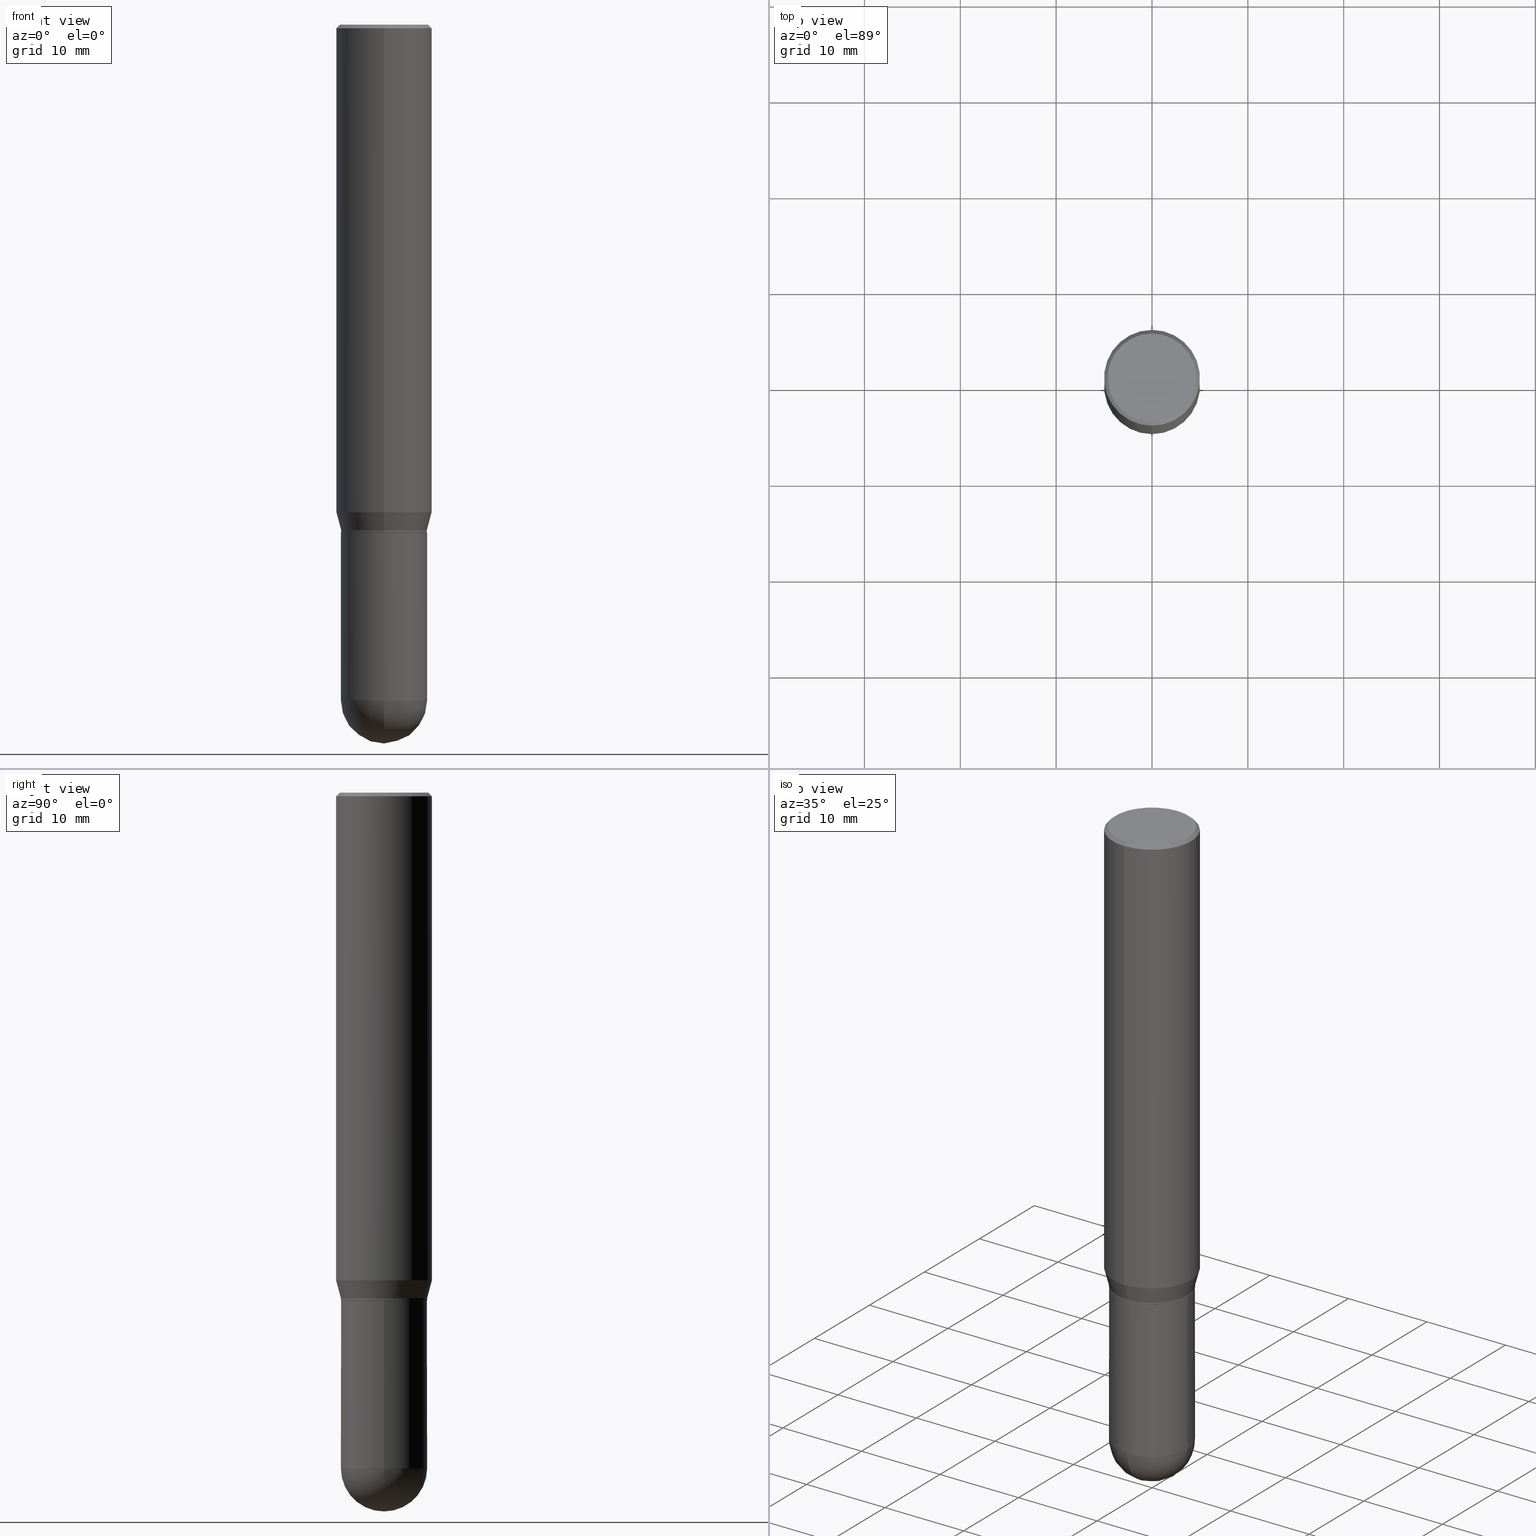
[diagram: canonical four-view strip — front | top / right | iso, engineering-drawing reading convention]
A machine part, canonical four-view strip (front | top / right | iso — engineering-drawing reading convention). The complete STEP part file that produces these views, byte-faithful:
ISO-10303-21;
HEADER;
FILE_DESCRIPTION (( 'STEP AP203' ),
    '1' );
FILE_NAME ('40154.STEP',
    '2024-03-08T12:57:14',
    ( '' ),
    ( '' ),
    'SwSTEP 2.0',
    'SolidWorks 2023',
    '' );
FILE_SCHEMA (( 'CONFIG_CONTROL_DESIGN' ));
ENDSEC;

DATA;
#1 = AXIS2_PLACEMENT_3D ( 'NONE', #118, #279, #435 ) ;
#2 = AXIS2_PLACEMENT_3D ( 'NONE', #31, #149, #281 ) ;
#3 = CC_DESIGN_APPROVAL ( #142, ( #197 ) ) ;
#4 = CARTESIAN_POINT ( 'NONE',  ( 1.255173742720268265E-15, 0.1766499999999928128, -2.086700000000000443 ) ) ;
#5 = CARTESIAN_POINT ( 'NONE',  ( -1.237031838352071315E-15, -0.1771500000000072461, -2.076699999999999768 ) ) ;
#6 = APPLICATION_PROTOCOL_DEFINITION ( 'international standard', 'config_control_design', 1994, #222 ) ;
#7 = CARTESIAN_POINT ( 'NONE',  ( 0.1771500000000000852, -8.522705948116114900E-15, -2.086699999999999999 ) ) ;
#8 = DIRECTION ( 'NONE',  ( -2.445684778589314030E-29, 3.491172054067977715E-15, 1.000000000000000000 ) ) ;
#9 = DIRECTION ( 'NONE',  ( -1.000000000000000000, 6.982962677686265922E-15, -4.876176775795935793E-29 ) ) ;
#10 = LOCAL_TIME ( 7, 57, 14.00000000000000000, #340 ) ;
#11 = DIRECTION ( 'NONE',  ( 2.445684778589314030E-29, -3.491172054067977715E-15, -1.000000000000000000 ) ) ;
#12 = ORIENTED_EDGE ( 'NONE', *, *, #117, .T. ) ;
#13 = LINE ( 'NONE', #297, #167 ) ;
#14 = AXIS2_PLACEMENT_3D ( 'NONE', #448, #75, #200 ) ;
#15 = EDGE_CURVE ( 'NONE', #425, #71, #382, .T. ) ;
#16 = CONICAL_SURFACE ( 'NONE', #137, 0.1766500000000000847, 0.7853981633974824739 ) ;
#17 = ORIENTED_EDGE ( 'NONE', *, *, #188, .F. ) ;
#18 = EDGE_CURVE ( 'NONE', #58, #313, #308, .T. ) ;
#19 = ORIENTED_EDGE ( 'NONE', *, *, #412, .T. ) ;
#20 = EDGE_CURVE ( 'NONE', #298, #193, #482, .T. ) ;
#21 = AXIS2_PLACEMENT_3D ( 'NONE', #99, #56, #259 ) ;
#22 = VERTEX_POINT ( 'NONE', #461 ) ;
#23 = EDGE_CURVE ( 'NONE', #223, #295, #52, .T. ) ;
#24 = DATE_AND_TIME ( #111, #375 ) ;
#25 = EDGE_LOOP ( 'NONE', ( #147, #465, #305, #148 ) ) ;
#26 = PLANE ( 'NONE',  #233 ) ;
#27 = DATE_AND_TIME ( #114, #46 ) ;
#28 = AXIS2_PLACEMENT_3D ( 'NONE', #410, #408, #186 ) ;
#29 = FACE_OUTER_BOUND ( 'NONE', #63, .T. ) ;
#30 = ORIENTED_EDGE ( 'NONE', *, *, #23, .T. ) ;
#31 = CARTESIAN_POINT ( 'NONE',  ( 6.787765491887772680E-29, -9.691130178159974964E-15, -2.775649999999999729 ) ) ;
#32 = EDGE_CURVE ( 'NONE', #58, #215, #13, .T. ) ;
#33 = CARTESIAN_POINT ( 'NONE',  ( 5.078953579696428568E-29, -7.250117004682970319E-15, -2.076700000000000212 ) ) ;
#34 = SHAPE_DEFINITION_REPRESENTATION ( #216, #199 ) ;
#35 = PLANE ( 'NONE',  #483 ) ;
#36 = DIRECTION ( 'NONE',  ( 1.839019923739597554E-15, 0.2588190451025245697, 0.9659258262890670910 ) ) ;
#37 = DIRECTION ( 'NONE',  ( 6.982962677686264344E-15, 1.000000000000000000, 0.000000000000000000 ) ) ;
#38 = DIRECTION ( 'NONE',  ( -6.982962677686265133E-15, -1.000000000000000000, 3.092949893760839854E-15 ) ) ;
#39 = EDGE_CURVE ( 'NONE', #460, #120, #474, .T. ) ;
#40 = DIRECTION ( 'NONE',  ( -6.982962677686265922E-15, -1.000000000000000000, 3.084220145260246224E-15 ) ) ;
#41 = ORIENTED_EDGE ( 'NONE', *, *, #333, .T. ) ;
#42 = DIMENSIONAL_EXPONENTS ( 1.000000000000000000, 0.000000000000000000, 0.000000000000000000, 0.000000000000000000, 0.000000000000000000, 0.000000000000000000, 0.000000000000000000 ) ;
#43 = AXIS2_PLACEMENT_3D ( 'NONE', #319, #207, #287 ) ;
#44 = CC_DESIGN_PERSON_AND_ORGANIZATION_ASSIGNMENT ( #262, #343, ( #197 ) ) ;
#45 = CARTESIAN_POINT ( 'NONE',  ( 4.899143408592464903E-29, -6.993441144453169598E-15, -2.003178599090893464 ) ) ;
#46 = LOCAL_TIME ( 7, 57, 14.00000000000000000, #381 ) ;
#47 = DIRECTION ( 'NONE',  ( -2.445684778589314030E-29, 3.491172054067977715E-15, 1.000000000000000000 ) ) ;
#48 =( NAMED_UNIT ( * ) PLANE_ANGLE_UNIT ( ) SI_UNIT ( $, .RADIAN. ) );
#49 = ORIENTED_EDGE ( 'NONE', *, *, #302, .F. ) ;
#50 = CARTESIAN_POINT ( 'NONE',  ( 1.237031838352173473E-15, 0.1771499999999928132, -2.086700000000000443 ) ) ;
#51 = ORIENTED_EDGE ( 'NONE', *, *, #205, .F. ) ;
#52 = CIRCLE ( 'NONE', #28, 0.1766500000000000847 ) ;
#53 = AXIS2_PLACEMENT_3D ( 'NONE', #443, #488, #133 ) ;
#54 = DIRECTION ( 'NONE',  ( -2.445684778589314030E-29, 3.491172054067977715E-15, 1.000000000000000000 ) ) ;
#55 = DIRECTION ( 'NONE',  ( -2.445468806185136597E-29, 3.491481338843145583E-15, 1.000000000000000000 ) ) ;
#56 = DIRECTION ( 'NONE',  ( -2.445684778589314030E-29, 3.491172054067977715E-15, 1.000000000000000000 ) ) ;
#57 = ADVANCED_FACE ( 'NONE', ( #138 ), #452, .T. ) ;
#58 = VERTEX_POINT ( 'NONE', #493 ) ;
#59 = PERSON_AND_ORGANIZATION ( #174, #107 ) ;
#60 = VECTOR ( 'NONE', #271, 39.37007874015748143 ) ;
#61 = AXIS2_PLACEMENT_3D ( 'NONE', #73, #113, #242 ) ;
#62 = ORIENTED_EDGE ( 'NONE', *, *, #231, .T. ) ;
#63 = EDGE_LOOP ( 'NONE', ( #103, #19, #377, #256 ) ) ;
#64 = DIRECTION ( 'NONE',  ( -2.445684778589314030E-29, 3.491172054067977715E-15, 1.000000000000000000 ) ) ;
#65 = DIRECTION ( 'NONE',  ( -6.982962677686265922E-15, -1.000000000000000000, 3.491172054067977715E-15 ) ) ;
#66 = ORIENTED_EDGE ( 'NONE', *, *, #134, .F. ) ;
#67 = CARTESIAN_POINT ( 'NONE',  ( -1.258726456398949454E-15, -0.1771500000000097441, -2.775649999999999284 ) ) ;
#68 = ADVANCED_FACE ( 'NONE', ( #351 ), #501, .T. ) ;
#69 = VECTOR ( 'NONE', #36, 39.37007874015748854 ) ;
#70 = AXIS2_PLACEMENT_3D ( 'NONE', #179, #337, #416 ) ;
#71 = VERTEX_POINT ( 'NONE', #473 ) ;
#72 = FACE_OUTER_BOUND ( 'NONE', #385, .T. ) ;
#73 = CARTESIAN_POINT ( 'NONE',  ( 6.813022828238686978E-29, -9.654960234947156736E-15, -2.775649999999999729 ) ) ;
#74 = PERSON_AND_ORGANIZATION_ROLE ( 'classification_officer' ) ;
#75 = DIRECTION ( 'NONE',  ( -2.445684778589314030E-29, 3.491172054067977715E-15, 1.000000000000000000 ) ) ;
#76 = DIRECTION ( 'NONE',  ( 1.000000000000000000, -6.982962677686270655E-15, 0.000000000000000000 ) ) ;
#77 = AXIS2_PLACEMENT_3D ( 'NONE', #166, #11, #444 ) ;
#78 = PRODUCT_DEFINITION_FORMATION_WITH_SPECIFIED_SOURCE ( 'ANY', '', #247, .NOT_KNOWN. ) ;
#79 = EDGE_CURVE ( 'NONE', #22, #498, #89, .T. ) ;
#80 = DIRECTION ( 'NONE',  ( -6.982962677686265922E-15, -1.000000000000000000, 4.163344669033675634E-15 ) ) ;
#81 = FACE_OUTER_BOUND ( 'NONE', #341, .T. ) ;
#82 =( CONVERSION_BASED_UNIT ( 'INCH', #323 ) LENGTH_UNIT ( ) NAMED_UNIT ( #42 ) );
#83 = CARTESIAN_POINT ( 'NONE',  ( 6.813022828238686978E-29, -9.654960234947156736E-15, -2.775649999999999729 ) ) ;
#84 = UNCERTAINTY_MEASURE_WITH_UNIT (LENGTH_MEASURE( 1.000000000000000082E-05 ), #82, 'distance_accuracy_value', 'NONE');
#85 = CC_DESIGN_PERSON_AND_ORGANIZATION_ASSIGNMENT ( #497, #418, ( #247 ) ) ;
#86 = DIRECTION ( 'NONE',  ( -6.982962677686265133E-15, -1.000000000000000000, 3.092949893760839854E-15 ) ) ;
#87 = DIRECTION ( 'NONE',  ( -1.807323732225327773E-15, -0.2588190451025178529, 0.9659258262890690894 ) ) ;
#88 = ORIENTED_EDGE ( 'NONE', *, *, #412, .F. ) ;
#89 = CIRCLE ( 'NONE', #1, 0.1968500000000000250 ) ;
#90 = AXIS2_PLACEMENT_3D ( 'NONE', #282, #47, #130 ) ;
#91 = DIRECTION ( 'NONE',  ( -2.445684778589314030E-29, 3.491172054067977715E-15, 1.000000000000000000 ) ) ;
#92 = VERTEX_POINT ( 'NONE', #239 ) ;
#93 = ORIENTED_EDGE ( 'NONE', *, *, #301, .T. ) ;
#94 = CARTESIAN_POINT ( 'NONE',  ( 6.787765491887772680E-29, -9.691130178159974964E-15, -2.775649999999999729 ) ) ;
#95 = CONICAL_SURFACE ( 'NONE', #77, 0.1968500000000000250, 0.7853981633974485010 ) ;
#96 = EDGE_CURVE ( 'NONE', #489, #498, #391, .T. ) ;
#97 = AXIS2_PLACEMENT_3D ( 'NONE', #449, #91, #131 ) ;
#98 = PERSON_AND_ORGANIZATION_ROLE ( 'creator' ) ;
#99 = CARTESIAN_POINT ( 'NONE',  ( 0.000000000000000000, 0.000000000000000000, 0.000000000000000000 ) ) ;
#100 = ORIENTED_EDGE ( 'NONE', *, *, #260, .F. ) ;
#101 = EDGE_LOOP ( 'NONE', ( #115, #93, #267, #190, #196 ) ) ;
#102 = ORIENTED_EDGE ( 'NONE', *, *, #188, .T. ) ;
#103 = ORIENTED_EDGE ( 'NONE', *, *, #464, .T. ) ;
#104 = PRODUCT_RELATED_PRODUCT_CATEGORY ( 'detail', '', ( #247 ) ) ;
#105 = ORIENTED_EDGE ( 'NONE', *, *, #388, .T. ) ;
#106 = CIRCLE ( 'NONE', #43, 0.1818500000000000116 ) ;
#107 = ORGANIZATION ( 'UNSPECIFIED', 'UNSPECIFIED', '' ) ;
#108 = DIRECTION ( 'NONE',  ( -6.982962677686265922E-15, -1.000000000000000000, 3.084220145260246224E-15 ) ) ;
#109 = EDGE_CURVE ( 'NONE', #321, #22, #145, .T. ) ;
#110 = FACE_OUTER_BOUND ( 'NONE', #370, .T. ) ;
#111 = CALENDAR_DATE ( 2024, 8, 3 ) ;
#112 = ORIENTED_EDGE ( 'NONE', *, *, #464, .F. ) ;
#113 = DIRECTION ( 'NONE',  ( -1.000000000000000000, 6.982962677686265133E-15, -4.883557194083112340E-29 ) ) ;
#114 = CALENDAR_DATE ( 2024, 8, 3 ) ;
#115 = ORIENTED_EDGE ( 'NONE', *, *, #407, .F. ) ;
#116 = FACE_OUTER_BOUND ( 'NONE', #421, .T. ) ;
#117 = EDGE_CURVE ( 'NONE', #223, #58, #427, .T. ) ;
#118 = CARTESIAN_POINT ( 'NONE',  ( 3.668527167884071097E-31, -5.236758081102108568E-17, -0.01500000000000040710 ) ) ;
#119 = CIRCLE ( 'NONE', #374, 0.1771500000000000574 ) ;
#120 = VERTEX_POINT ( 'NONE', #7 ) ;
#121 = DIRECTION ( 'NONE',  ( 6.982962677686265922E-15, 1.000000000000000000, -3.491172054067977715E-15 ) ) ;
#122 = FACE_OUTER_BOUND ( 'NONE', #415, .T. ) ;
#123 = ORIENTED_EDGE ( 'NONE', *, *, #388, .F. ) ;
#124 = APPROVAL ( #379, 'UNSPECIFIED' ) ;
#125 = CARTESIAN_POINT ( 'NONE',  ( 1.256950099559668320E-15, 0.1766499999999928128, -2.086700000000000443 ) ) ;
#126 = CARTESIAN_POINT ( 'NONE',  ( 0.000000000000000000, 0.000000000000000000, 0.000000000000000000 ) ) ;
#127 = FACE_OUTER_BOUND ( 'NONE', #25, .T. ) ;
#128 = LINE ( 'NONE', #254, #317 ) ;
#129 = FACE_OUTER_BOUND ( 'NONE', #211, .T. ) ;
#130 = DIRECTION ( 'NONE',  ( -6.982962677686265133E-15, -1.000000000000000000, 3.491137977679279424E-15 ) ) ;
#131 = DIRECTION ( 'NONE',  ( -6.982962677686265922E-15, -1.000000000000000000, 4.163344669033675634E-15 ) ) ;
#132 = DIRECTION ( 'NONE',  ( -2.445684778589314030E-29, 3.491172054067977715E-15, 1.000000000000000000 ) ) ;
#133 = DIRECTION ( 'NONE',  ( -6.982962677686265922E-15, -1.000000000000000000, 3.491172054067978110E-15 ) ) ;
#134 = EDGE_CURVE ( 'NONE', #489, #92, #106, .T. ) ;
#135 = EDGE_LOOP ( 'NONE', ( #487, #453 ) ) ;
#136 = AXIS2_PLACEMENT_3D ( 'NONE', #398, #478, #38 ) ;
#137 = AXIS2_PLACEMENT_3D ( 'NONE', #285, #367, #86 ) ;
#138 = FACE_OUTER_BOUND ( 'NONE', #144, .T. ) ;
#139 = EDGE_LOOP ( 'NONE', ( #348, #366, #420, #153 ) ) ;
#140 = EDGE_CURVE ( 'NONE', #295, #223, #255, .T. ) ;
#141 = CALENDAR_DATE ( 2024, 8, 3 ) ;
#142 = APPROVAL ( #143, 'UNSPECIFIED' ) ;
#143 = APPROVAL_STATUS ( 'not_yet_approved' ) ;
#144 = EDGE_LOOP ( 'NONE', ( #88, #423, #175, #51 ) ) ;
#145 = LINE ( 'NONE', #146, #60 ) ;
#146 = CARTESIAN_POINT ( 'NONE',  ( -1.374596203102541214E-15, -0.1968499999999999694, 6.872372188432813315E-16 ) ) ;
#147 = ORIENTED_EDGE ( 'NONE', *, *, #173, .F. ) ;
#148 = ORIENTED_EDGE ( 'NONE', *, *, #210, .F. ) ;
#149 = DIRECTION ( 'NONE',  ( -2.445468806185136597E-29, 3.491481338843145583E-15, 1.000000000000000000 ) ) ;
#150 = CIRCLE ( 'NONE', #451, 0.1771500000000000019 ) ;
#151 = COORDINATED_UNIVERSAL_TIME_OFFSET ( 5, 0, .BEHIND. ) ;
#152 = EDGE_CURVE ( 'NONE', #215, #321, #446, .T. ) ;
#153 = ORIENTED_EDGE ( 'NONE', *, *, #96, .F. ) ;
#154 = CARTESIAN_POINT ( 'NONE',  ( 0.000000000000000000, 0.000000000000000000, 0.000000000000000000 ) ) ;
#155 = ADVANCED_FACE ( 'NONE', ( #208 ), #290, .T. ) ;
#156 = CARTESIAN_POINT ( 'NONE',  ( 1.258726456399067783E-15, 0.1771499999999926744, -2.086200000000000720 ) ) ;
#157 = CARTESIAN_POINT ( 'NONE',  ( 1.398703375343805514E-15, 0.1968499999999929750, -2.003178599090894352 ) ) ;
#158 = DATE_AND_TIME ( #238, #169 ) ;
#159 = CARTESIAN_POINT ( 'NONE',  ( -1.237031838352071315E-15, -0.1771500000000072461, -2.076699999999999768 ) ) ;
#160 = CYLINDRICAL_SURFACE ( 'NONE', #365, 0.1771500000000000574 ) ;
#161 = COORDINATED_UNIVERSAL_TIME_OFFSET ( 5, 0, .BEHIND. ) ;
#162 = DIRECTION ( 'NONE',  ( -6.982962677686265922E-15, -1.000000000000000000, 3.491172054067977715E-15 ) ) ;
#163 = CARTESIAN_POINT ( 'NONE',  ( -0.1771500000000000852, -7.229675687562965256E-15, -2.086699999999999999 ) ) ;
#164 = CARTESIAN_POINT ( 'NONE',  ( 5.102187585093028029E-29, -7.283283139196615099E-15, -2.086199999999999832 ) ) ;
#165 = CARTESIAN_POINT ( 'NONE',  ( 5.102959757866523939E-29, -7.285674109763990928E-15, -2.086699999999999999 ) ) ;
#166 = CARTESIAN_POINT ( 'NONE',  ( 3.668527167884071097E-31, -5.236758081102108568E-17, -0.01500000000000040710 ) ) ;
#167 = VECTOR ( 'NONE', #54, 39.37007874015748143 ) ;
#168 = CIRCLE ( 'NONE', #397, 0.1771500000000000574 ) ;
#169 = LOCAL_TIME ( 7, 57, 14.00000000000000000, #161 ) ;
#170 = CARTESIAN_POINT ( 'NONE',  ( 1.398703375343756802E-15, 0.1968499999999999694, -6.872372188432813315E-16 ) ) ;
#171 = CARTESIAN_POINT ( 'NONE',  ( 7.253812262660790316E-29, -1.026262884509977305E-14, -2.952799999999999869 ) ) ;
#172 = PLANE ( 'NONE',  #280 ) ;
#173 = EDGE_CURVE ( 'NONE', #313, #309, #128, .T. ) ;
#174 = PERSON ( 'UNSPECIFIED', 'UNSPECIFIED', 'UNSPECIFIED', ('UNSPECIFIED'), ('UNSPECIFIED'), ('UNSPECIFIED') ) ;
#175 = ORIENTED_EDGE ( 'NONE', *, *, #109, .T. ) ;
#176 = AXIS2_PLACEMENT_3D ( 'NONE', #312, #278, #434 ) ;
#177 = ADVANCED_FACE ( 'NONE', ( #206 ), #95, .T. ) ;
#178 = EDGE_LOOP ( 'NONE', ( #123, #411, #12, #185 ) ) ;
#179 = CARTESIAN_POINT ( 'NONE',  ( 0.000000000000000000, 0.000000000000000000, 0.000000000000000000 ) ) ;
#180 = ORIENTED_EDGE ( 'NONE', *, *, #15, .T. ) ;
#181 = ADVANCED_FACE ( 'NONE', ( #81 ), #299, .T. ) ;
#182 = EDGE_LOOP ( 'NONE', ( #417, #368, #392, #236 ) ) ;
#183 = ADVANCED_FACE ( 'NONE', ( #122 ), #284, .T. ) ;
#184 = VECTOR ( 'NONE', #291, 39.37007874015748143 ) ;
#185 = ORIENTED_EDGE ( 'NONE', *, *, #220, .F. ) ;
#186 = DIRECTION ( 'NONE',  ( -6.982962677686265133E-15, -1.000000000000000000, 3.092949893760839854E-15 ) ) ;
#187 = EDGE_LOOP ( 'NONE', ( #49, #62, #17, #240 ) ) ;
#188 = EDGE_CURVE ( 'NONE', #193, #425, #203, .T. ) ;
#189 = ORIENTED_EDGE ( 'NONE', *, *, #438, .F. ) ;
#190 = ORIENTED_EDGE ( 'NONE', *, *, #345, .T. ) ;
#191 = DIRECTION ( 'NONE',  ( -4.851104656540965064E-15, -0.7071067811865501263, -0.7071067811865449082 ) ) ;
#192 = AXIS2_PLACEMENT_3D ( 'NONE', #440, #405, #76 ) ;
#193 = VERTEX_POINT ( 'NONE', #213 ) ;
#194 = DIRECTION ( 'NONE',  ( -2.445684778589314030E-29, 3.491172054067977715E-15, 1.000000000000000000 ) ) ;
#195 = DIRECTION ( 'NONE',  ( -2.445684778589314030E-29, 3.491172054067977715E-15, 1.000000000000000000 ) ) ;
#196 = ORIENTED_EDGE ( 'NONE', *, *, #39, .F. ) ;
#197 = PRODUCT_DEFINITION ( 'UNKNOWN', '', #78, #331 ) ;
#198 = FACE_OUTER_BOUND ( 'NONE', #187, .T. ) ;
#199 = ADVANCED_BREP_SHAPE_REPRESENTATION ( '40154', ( #273, #436, #70 ), #335 ) ;
#200 = DIRECTION ( 'NONE',  ( -6.982962677686265133E-15, -1.000000000000000000, 3.092949893760839854E-15 ) ) ;
#201 = CLOSED_SHELL ( 'NONE', ( #362, #183, #506, #378, #155 ) ) ;
#202 = APPROVAL ( #243, 'UNSPECIFIED' ) ;
#203 = CIRCLE ( 'NONE', #192, 0.1771500000000000574 ) ;
#204 = CARTESIAN_POINT ( 'NONE',  ( 0.000000000000000000, 0.000000000000000000, 0.000000000000000000 ) ) ;
#205 = EDGE_CURVE ( 'NONE', #498, #22, #491, .T. ) ;
#206 = FACE_OUTER_BOUND ( 'NONE', #139, .T. ) ;
#207 = DIRECTION ( 'NONE',  ( -2.445684778589314030E-29, 3.491172054067977715E-15, 1.000000000000000000 ) ) ;
#208 = FACE_OUTER_BOUND ( 'NONE', #101, .T. ) ;
#209 = AXIS2_PLACEMENT_3D ( 'NONE', #486, #132, #396 ) ;
#210 = EDGE_CURVE ( 'NONE', #309, #215, #150, .T. ) ;
#211 = EDGE_LOOP ( 'NONE', ( #500, #468 ) ) ;
#212 = LINE ( 'NONE', #170, #475 ) ;
#213 = CARTESIAN_POINT ( 'NONE',  ( 0.1771500000000000574, -9.725433982314104551E-15, -2.775649999999999729 ) ) ;
#214 =( NAMED_UNIT ( * ) SI_UNIT ( $, .STERADIAN. ) SOLID_ANGLE_UNIT ( ) );
#215 = VERTEX_POINT ( 'NONE', #159 ) ;
#216 = PRODUCT_DEFINITION_SHAPE ( 'NONE', 'NONE',  #197 ) ;
#217 = VECTOR ( 'NONE', #87, 39.37007874015748143 ) ;
#218 = LOCAL_TIME ( 7, 57, 14.00000000000000000, #151 ) ;
#219 = DIRECTION ( 'NONE',  ( 1.000000000000000000, -6.982962677686270655E-15, 0.000000000000000000 ) ) ;
#220 = EDGE_CURVE ( 'NONE', #313, #58, #413, .T. ) ;
#221 = MECHANICAL_CONTEXT ( 'NONE', #222, 'mechanical' ) ;
#222 = APPLICATION_CONTEXT ( 'configuration controlled 3d designs of mechanical parts and assemblies' ) ;
#223 = VERTEX_POINT ( 'NONE', #401 ) ;
#224 = PERSON_AND_ORGANIZATION ( #174, #107 ) ;
#225 = AXIS2_PLACEMENT_3D ( 'NONE', #204, #194, #65 ) ;
#226 = ADVANCED_FACE ( 'NONE', ( #394 ), #35, .F. ) ;
#227 = ORIENTED_EDGE ( 'NONE', *, *, #302, .T. ) ;
#228 = APPROVAL_ROLE ( '' ) ;
#229 = APPROVAL_DATE_TIME ( #24, #142 ) ;
#230 = CYLINDRICAL_SURFACE ( 'NONE', #225, 0.1968499999999999694 ) ;
#231 = EDGE_CURVE ( 'NONE', #253, #425, #119, .T. ) ;
#232 = CARTESIAN_POINT ( 'NONE',  ( 1.258726456399067980E-15, 0.1771499999999927855, -2.076700000000000657 ) ) ;
#233 = AXIS2_PLACEMENT_3D ( 'NONE', #354, #237, #121 ) ;
#234 = PERSON_AND_ORGANIZATION ( #174, #107 ) ;
#235 = CC_DESIGN_APPROVAL ( #124, ( #78 ) ) ;
#236 = ORIENTED_EDGE ( 'NONE', *, *, #454, .F. ) ;
#237 = DIRECTION ( 'NONE',  ( 2.445684778589313749E-29, -3.491172054067977715E-15, -1.000000000000000000 ) ) ;
#238 = CALENDAR_DATE ( 2024, 8, 3 ) ;
#239 = CARTESIAN_POINT ( 'NONE',  ( -1.299035295878039226E-15, -0.1818500000000000116, 2.277643965498135137E-16 ) ) ;
#240 = ORIENTED_EDGE ( 'NONE', *, *, #20, .F. ) ;
#241 = CC_DESIGN_DATE_AND_TIME_ASSIGNMENT ( #27, #426, ( #424 ) ) ;
#242 = DIRECTION ( 'NONE',  ( 6.982962677686265133E-15, 1.000000000000000000, -3.084220145260245435E-15 ) ) ;
#243 = APPROVAL_STATUS ( 'not_yet_approved' ) ;
#244 = DIRECTION ( 'NONE',  ( -6.982962677686265922E-15, -1.000000000000000000, 3.084220145260246224E-15 ) ) ;
#245 = ADVANCED_FACE ( 'NONE', ( #364 ), #261, .T. ) ;
#246 = CARTESIAN_POINT ( 'NONE',  ( -0.1771500000000000574, 1.258726456399017887E-15, -8.713893512386568128E-30 ) ) ;
#247 = PRODUCT ( '40154', '40154', '', ( #221 ) ) ;
#248 = CARTESIAN_POINT ( 'NONE',  ( 6.813022828238686978E-29, -9.654960234947156736E-15, -2.775649999999999729 ) ) ;
#249 = AXIS2_PLACEMENT_3D ( 'NONE', #33, #276, #431 ) ;
#250 = CARTESIAN_POINT ( 'NONE',  ( 5.078953579696428568E-29, -7.250117004682970319E-15, -2.076700000000000212 ) ) ;
#251 = DIRECTION ( 'NONE',  ( -1.000000000000000000, 6.982962677686265133E-15, -4.883557194083112340E-29 ) ) ;
#252 = APPLICATION_CONTEXT ( 'configuration controlled 3d designs of mechanical parts and assemblies' ) ;
#253 = VERTEX_POINT ( 'NONE', #171 ) ;
#254 = CARTESIAN_POINT ( 'NONE',  ( 1.258726456399017296E-15, 0.1771500000000000019, -6.184611293781423182E-16 ) ) ;
#255 = CIRCLE ( 'NONE', #14, 0.1766500000000000847 ) ;
#256 = ORIENTED_EDGE ( 'NONE', *, *, #109, .F. ) ;
#257 = CC_DESIGN_APPROVAL ( #202, ( #424 ) ) ;
#258 = DIRECTION ( 'NONE',  ( -2.445468806185136597E-29, 3.491481338843145583E-15, 1.000000000000000000 ) ) ;
#259 = DIRECTION ( 'NONE',  ( -6.982962677686265922E-15, -1.000000000000000000, 3.491172054067977715E-15 ) ) ;
#260 = EDGE_CURVE ( 'NONE', #215, #309, #268, .T. ) ;
#261 = CONICAL_SURFACE ( 'NONE', #328, 0.1771500000000000019, 0.2617993877991499074 ) ;
#262 = PERSON_AND_ORGANIZATION ( #174, #107 ) ;
#263 = ORIENTED_EDGE ( 'NONE', *, *, #15, .F. ) ;
#264 = ADVANCED_FACE ( 'NONE', ( #29 ), #230, .T. ) ;
#265 = ORIENTED_EDGE ( 'NONE', *, *, #32, .F. ) ;
#266 = DATE_AND_TIME ( #141, #218 ) ;
#267 = ORIENTED_EDGE ( 'NONE', *, *, #20, .T. ) ;
#268 = CIRCLE ( 'NONE', #209, 0.1771500000000000019 ) ;
#269 = EDGE_CURVE ( 'NONE', #92, #22, #360, .T. ) ;
#270 = CC_DESIGN_PERSON_AND_ORGANIZATION_ASSIGNMENT ( #455, #98, ( #78 ) ) ;
#271 = DIRECTION ( 'NONE',  ( -2.445684778589314030E-29, 3.491172054067977715E-15, 1.000000000000000000 ) ) ;
#272 = DIRECTION ( 'NONE',  ( 1.000000000000000000, -6.982962677686270655E-15, 0.000000000000000000 ) ) ;
#273 = MANIFOLD_SOLID_BREP ( 'Body-Move/Copy2[1]', #201 ) ;
#274 = DIRECTION ( 'NONE',  ( -2.445468806185136597E-29, 3.491481338843145583E-15, 1.000000000000000000 ) ) ;
#275 = SECURITY_CLASSIFICATION_LEVEL ( 'unclassified' ) ;
#276 = DIRECTION ( 'NONE',  ( -2.445684778589314030E-29, 3.491172054067977715E-15, 1.000000000000000000 ) ) ;
#277 = ADVANCED_FACE ( 'NONE', ( #116 ), #383, .T. ) ;
#278 = DIRECTION ( 'NONE',  ( -2.445684778589314030E-29, 3.491172054067977715E-15, 1.000000000000000000 ) ) ;
#279 = DIRECTION ( 'NONE',  ( -2.445684778589314030E-29, 3.491172054067977715E-15, 1.000000000000000000 ) ) ;
#280 = AXIS2_PLACEMENT_3D ( 'NONE', #50, #400, #9 ) ;
#281 = DIRECTION ( 'NONE',  ( 1.000000000000000000, -6.982962677686270655E-15, 0.000000000000000000 ) ) ;
#282 = CARTESIAN_POINT ( 'NONE',  ( 3.668527167884071097E-31, -5.236758081102108568E-17, -0.01500000000000040710 ) ) ;
#283 = DIRECTION ( 'NONE',  ( -2.445468806185136877E-29, 3.491481338843145188E-15, 1.000000000000000000 ) ) ;
#284 = SPHERICAL_SURFACE ( 'NONE', #505, 0.1771500000000000574 ) ;
#285 = CARTESIAN_POINT ( 'NONE',  ( 5.103410427482321675E-29, -7.285028725223647789E-15, -2.086699999999999999 ) ) ;
#286 = AXIS2_PLACEMENT_3D ( 'NONE', #428, #64, #108 ) ;
#287 = DIRECTION ( 'NONE',  ( -6.982962677686265133E-15, -1.000000000000000000, 3.491172054067976926E-15 ) ) ;
#288 = CONICAL_SURFACE ( 'NONE', #249, 0.1771500000000000019, 0.2617993877991499074 ) ;
#289 =( LENGTH_UNIT ( ) NAMED_UNIT ( * ) SI_UNIT ( $, .METRE. ) );
#290 = CYLINDRICAL_SURFACE ( 'NONE', #334, 0.1771500000000000574 ) ;
#291 = DIRECTION ( 'NONE',  ( -2.445468806185136877E-29, 3.491481338843145188E-15, 1.000000000000000000 ) ) ;
#292 = CARTESIAN_POINT ( 'NONE',  ( -1.233540357013228308E-15, -0.1766500000000073567, -2.086699999999999555 ) ) ;
#293 = VECTOR ( 'NONE', #356, 39.37007874015748143 ) ;
#294 = AXIS2_PLACEMENT_3D ( 'NONE', #352, #429, #390 ) ;
#295 = VERTEX_POINT ( 'NONE', #125 ) ;
#296 = APPROVAL_DATE_TIME ( #266, #124 ) ;
#297 = CARTESIAN_POINT ( 'NONE',  ( -1.237031838352121999E-15, -0.1771500000000000019, 6.184611293781423182E-16 ) ) ;
#298 = VERTEX_POINT ( 'NONE', #67 ) ;
#299 = CONICAL_SURFACE ( 'NONE', #136, 0.1766500000000000847, 0.7853981633974824739 ) ;
#300 = AXIS2_PLACEMENT_3D ( 'NONE', #45, #402, #80 ) ;
#301 = EDGE_CURVE ( 'NONE', #71, #298, #442, .T. ) ;
#302 = EDGE_CURVE ( 'NONE', #253, #298, #168, .T. ) ;
#303 = APPROVAL_ROLE ( '' ) ;
#304 = ORIENTED_EDGE ( 'NONE', *, *, #301, .F. ) ;
#305 = ORIENTED_EDGE ( 'NONE', *, *, #32, .T. ) ;
#306 = ORIENTED_EDGE ( 'NONE', *, *, #231, .F. ) ;
#307 = CARTESIAN_POINT ( 'NONE',  ( 6.787765491887772680E-29, -9.691130178159974964E-15, -2.775649999999999729 ) ) ;
#308 = CIRCLE ( 'NONE', #286, 0.1771500000000000019 ) ;
#309 = VERTEX_POINT ( 'NONE', #477 ) ;
#310 = CARTESIAN_POINT ( 'NONE',  ( 6.813022828238686978E-29, -9.654960234947156736E-15, -2.775649999999999729 ) ) ;
#311 = ORIENTED_EDGE ( 'NONE', *, *, #152, .F. ) ;
#312 = CARTESIAN_POINT ( 'NONE',  ( 9.956510923775504622E-45, -1.421274442128118722E-30, -4.071052414824481619E-16 ) ) ;
#313 = VERTEX_POINT ( 'NONE', #156 ) ;
#314 = DIRECTION ( 'NONE',  ( -7.105427357600999492E-15, -1.000000000000000000, 0.000000000000000000 ) ) ;
#315 = DIRECTION ( 'NONE',  ( -6.982962677686265922E-15, -1.000000000000000000, 3.491172054067978110E-15 ) ) ;
#316 = DIRECTION ( 'NONE',  ( -1.000000000000000000, 7.105427357601001070E-15, -4.926315508542082329E-29 ) ) ;
#317 = VECTOR ( 'NONE', #8, 39.37007874015748143 ) ;
#318 = APPROVAL_DATE_TIME ( #158, #202 ) ;
#319 = CARTESIAN_POINT ( 'NONE',  ( 9.956510923775504622E-45, -1.421274442128118722E-30, -4.071052414824481619E-16 ) ) ;
#320 = CC_DESIGN_PERSON_AND_ORGANIZATION_ASSIGNMENT ( #234, #74, ( #424 ) ) ;
#321 = VERTEX_POINT ( 'NONE', #510 ) ;
#322 = DIRECTION ( 'NONE',  ( 1.000000000000000000, -6.982962677686265922E-15, 4.883557194083112340E-29 ) ) ;
#323 = LENGTH_MEASURE_WITH_UNIT ( LENGTH_MEASURE( 0.02539999999999999897 ), #289 );
#324 = DIRECTION ( 'NONE',  ( -2.445468806185136597E-29, 3.491481338843145583E-15, 1.000000000000000000 ) ) ;
#325 = EDGE_CURVE ( 'NONE', #92, #489, #458, .T. ) ;
#326 = CARTESIAN_POINT ( 'NONE',  ( 1.237031838352190236E-15, 0.1771499999999903430, -2.775650000000000173 ) ) ;
#327 = DIRECTION ( 'NONE',  ( -2.445684778589314030E-29, 3.491172054067977715E-15, 1.000000000000000000 ) ) ;
#328 = AXIS2_PLACEMENT_3D ( 'NONE', #361, #327, #485 ) ;
#329 = DIRECTION ( 'NONE',  ( -2.445684778589314030E-29, 3.491172054067977715E-15, 1.000000000000000000 ) ) ;
#330 = DIRECTION ( 'NONE',  ( -2.445684778589313749E-29, 3.491172054067977715E-15, 1.000000000000000000 ) ) ;
#331 = DESIGN_CONTEXT ( 'detailed design', #252, 'design' ) ;
#332 = CYLINDRICAL_SURFACE ( 'NONE', #53, 0.1771500000000000019 ) ;
#333 = EDGE_CURVE ( 'NONE', #309, #371, #393, .T. ) ;
#334 = AXIS2_PLACEMENT_3D ( 'NONE', #126, #324, #481 ) ;
#335 =( GEOMETRIC_REPRESENTATION_CONTEXT ( 3 ) GLOBAL_UNCERTAINTY_ASSIGNED_CONTEXT ( ( #84 ) ) GLOBAL_UNIT_ASSIGNED_CONTEXT ( ( #82, #48, #214 ) ) REPRESENTATION_CONTEXT ( 'NONE', 'WORKASPACE' ) );
#336 = CARTESIAN_POINT ( 'NONE',  ( 5.102959757866523939E-29, -7.285674109763990928E-15, -2.086699999999999999 ) ) ;
#337 = DIRECTION ( 'NONE',  ( 0.000000000000000000, 0.000000000000000000, 1.000000000000000000 ) ) ;
#338 = ORIENTED_EDGE ( 'NONE', *, *, #134, .T. ) ;
#339 = ADVANCED_FACE ( 'NONE', ( #72 ), #26, .F. ) ;
#340 = COORDINATED_UNIVERSAL_TIME_OFFSET ( 5, 0, .BEHIND. ) ;
#341 = EDGE_LOOP ( 'NONE', ( #30, #105, #508, #346 ) ) ;
#342 = ORIENTED_EDGE ( 'NONE', *, *, #96, .T. ) ;
#343 = PERSON_AND_ORGANIZATION_ROLE ( 'creator' ) ;
#344 = ORIENTED_EDGE ( 'NONE', *, *, #269, .F. ) ;
#345 = EDGE_CURVE ( 'NONE', #193, #120, #469, .T. ) ;
#346 = ORIENTED_EDGE ( 'NONE', *, *, #117, .F. ) ;
#347 = COORDINATED_UNIVERSAL_TIME_OFFSET ( 5, 0, .BEHIND. ) ;
#348 = ORIENTED_EDGE ( 'NONE', *, *, #325, .F. ) ;
#349 = AXIS2_PLACEMENT_3D ( 'NONE', #165, #258, #447 ) ;
#350 = CARTESIAN_POINT ( 'NONE',  ( 0.1771500000000000574, -1.237031838352122591E-15, 8.638147158322501361E-30 ) ) ;
#351 = FACE_OUTER_BOUND ( 'NONE', #502, .T. ) ;
#352 = CARTESIAN_POINT ( 'NONE',  ( 3.668527167884071097E-31, -5.236758081102108568E-17, -0.01500000000000040710 ) ) ;
#353 = PERSON_AND_ORGANIZATION_ROLE ( 'design_supplier' ) ;
#354 = CARTESIAN_POINT ( 'NONE',  ( 1.269851762937247450E-15, 0.1818500000000000116, -8.384222587734856826E-16 ) ) ;
#355 = PERSON_AND_ORGANIZATION ( #174, #107 ) ;
#356 = DIRECTION ( 'NONE',  ( 4.937700262164548831E-15, 0.7071067811865452413, -0.7071067811865497932 ) ) ;
#357 = VECTOR ( 'NONE', #480, 39.37007874015748854 ) ;
#358 = LINE ( 'NONE', #4, #406 ) ;
#359 = CARTESIAN_POINT ( 'NONE',  ( 5.103410427482321675E-29, -7.285028725223647789E-15, -2.086699999999999999 ) ) ;
#360 = LINE ( 'NONE', #380, #495 ) ;
#361 = CARTESIAN_POINT ( 'NONE',  ( 5.078953579696428568E-29, -7.250117004682970319E-15, -2.076700000000000212 ) ) ;
#362 = ADVANCED_FACE ( 'NONE', ( #110 ), #160, .T. ) ;
#363 = CARTESIAN_POINT ( 'NONE',  ( 1.398703375343806303E-15, 0.1968499999999999139, -0.01500000000000109579 ) ) ;
#364 = FACE_OUTER_BOUND ( 'NONE', #182, .T. ) ;
#365 = AXIS2_PLACEMENT_3D ( 'NONE', #154, #274, #511 ) ;
#366 = ORIENTED_EDGE ( 'NONE', *, *, #269, .T. ) ;
#367 = DIRECTION ( 'NONE',  ( -2.445684778589314030E-29, 3.491172054067977715E-15, 1.000000000000000000 ) ) ;
#368 = ORIENTED_EDGE ( 'NONE', *, *, #210, .T. ) ;
#369 = CIRCLE ( 'NONE', #349, 0.1771500000000000852 ) ;
#370 = EDGE_LOOP ( 'NONE', ( #180, #463, #189, #504, #102 ) ) ;
#371 = VERTEX_POINT ( 'NONE', #157 ) ;
#372 = APPLICATION_PROTOCOL_DEFINITION ( 'international standard', 'config_control_design', 1994, #252 ) ;
#373 = AXIS2_PLACEMENT_3D ( 'NONE', #430, #195, #315 ) ;
#374 = AXIS2_PLACEMENT_3D ( 'NONE', #248, #322, #37 ) ;
#375 = LOCAL_TIME ( 7, 57, 14.00000000000000000, #347 ) ;
#376 = CARTESIAN_POINT ( 'NONE',  ( 1.374596203102542003E-15, 0.1968499999999999417, -0.01500000000000109579 ) ) ;
#377 = ORIENTED_EDGE ( 'NONE', *, *, #79, .F. ) ;
#378 = ADVANCED_FACE ( 'NONE', ( #198 ), #471, .T. ) ;
#379 = APPROVAL_STATUS ( 'not_yet_approved' ) ;
#380 = CARTESIAN_POINT ( 'NONE',  ( -1.350489030861325429E-15, -0.1968500000000000805, -0.01499999999999972015 ) ) ;
#381 = COORDINATED_UNIVERSAL_TIME_OFFSET ( 5, 0, .BEHIND. ) ;
#382 = CIRCLE ( 'NONE', #450, 0.1771500000000000574 ) ;
#383 = CONICAL_SURFACE ( 'NONE', #294, 0.1968500000000000250, 0.7853981633974485010 ) ;
#384 = CC_DESIGN_SECURITY_CLASSIFICATION ( #424, ( #78 ) ) ;
#385 = EDGE_LOOP ( 'NONE', ( #338, #476 ) ) ;
#386 = PERSON_AND_ORGANIZATION ( #174, #107 ) ;
#387 = ADVANCED_FACE ( 'NONE', ( #509 ), #288, .T. ) ;
#388 = EDGE_CURVE ( 'NONE', #295, #313, #358, .T. ) ;
#389 = ORIENTED_EDGE ( 'NONE', *, *, #205, .T. ) ;
#390 = DIRECTION ( 'NONE',  ( 6.982962677686265133E-15, 1.000000000000000000, -3.491137977679279424E-15 ) ) ;
#391 = LINE ( 'NONE', #376, #293 ) ;
#392 = ORIENTED_EDGE ( 'NONE', *, *, #152, .T. ) ;
#393 = LINE ( 'NONE', #232, #69 ) ;
#394 = FACE_OUTER_BOUND ( 'NONE', #135, .T. ) ;
#395 = CC_DESIGN_DATE_AND_TIME_ASSIGNMENT ( #496, #419, ( #197 ) ) ;
#396 = DIRECTION ( 'NONE',  ( -6.982962677686265922E-15, -1.000000000000000000, 3.084220145260246224E-15 ) ) ;
#397 = AXIS2_PLACEMENT_3D ( 'NONE', #310, #316, #314 ) ;
#398 = CARTESIAN_POINT ( 'NONE',  ( 5.103410427482321675E-29, -7.285028725223647789E-15, -2.086699999999999999 ) ) ;
#399 = APPROVAL_PERSON_ORGANIZATION ( #386, #202, #228 ) ;
#400 = DIRECTION ( 'NONE',  ( 2.438088387897960049E-29, -3.491481338843145188E-15, -1.000000000000000000 ) ) ;
#401 = CARTESIAN_POINT ( 'NONE',  ( -1.233540357013228308E-15, -0.1766500000000073567, -2.086699999999999555 ) ) ;
#402 = DIRECTION ( 'NONE',  ( -2.445684778589314030E-29, 3.491172054067977715E-15, 1.000000000000000000 ) ) ;
#403 = DIRECTION ( 'NONE',  ( 6.982962677686265133E-15, 1.000000000000000000, -3.084220145260245435E-15 ) ) ;
#404 = EDGE_LOOP ( 'NONE', ( #494, #41, #112, #311 ) ) ;
#405 = DIRECTION ( 'NONE',  ( -2.445468806185136597E-29, 3.491481338843145583E-15, 1.000000000000000000 ) ) ;
#406 = VECTOR ( 'NONE', #479, 39.37007874015748854 ) ;
#407 = EDGE_CURVE ( 'NONE', #71, #460, #439, .T. ) ;
#408 = DIRECTION ( 'NONE',  ( -2.445684778589314030E-29, 3.491172054067977715E-15, 1.000000000000000000 ) ) ;
#409 = FACE_OUTER_BOUND ( 'NONE', #178, .T. ) ;
#410 = CARTESIAN_POINT ( 'NONE',  ( 5.103410427482321675E-29, -7.285028725223647789E-15, -2.086699999999999999 ) ) ;
#411 = ORIENTED_EDGE ( 'NONE', *, *, #140, .T. ) ;
#412 = EDGE_CURVE ( 'NONE', #371, #498, #212, .T. ) ;
#413 = CIRCLE ( 'NONE', #432, 0.1771500000000000019 ) ;
#414 = ADVANCED_FACE ( 'NONE', ( #127 ), #332, .T. ) ;
#415 = EDGE_LOOP ( 'NONE', ( #306, #227, #304, #263 ) ) ;
#416 = DIRECTION ( 'NONE',  ( 1.000000000000000000, 0.000000000000000000, 0.000000000000000000 ) ) ;
#417 = ORIENTED_EDGE ( 'NONE', *, *, #333, .F. ) ;
#418 = PERSON_AND_ORGANIZATION_ROLE ( 'design_owner' ) ;
#419 = DATE_TIME_ROLE ( 'creation_date' ) ;
#420 = ORIENTED_EDGE ( 'NONE', *, *, #79, .T. ) ;
#421 = EDGE_LOOP ( 'NONE', ( #344, #66, #342, #389 ) ) ;
#422 = APPROVAL_ROLE ( '' ) ;
#423 = ORIENTED_EDGE ( 'NONE', *, *, #454, .T. ) ;
#424 = SECURITY_CLASSIFICATION ( '', '', #275 ) ;
#425 = VERTEX_POINT ( 'NONE', #326 ) ;
#426 = DATE_TIME_ROLE ( 'classification_date' ) ;
#427 = LINE ( 'NONE', #292, #357 ) ;
#428 = CARTESIAN_POINT ( 'NONE',  ( 5.102187585093028029E-29, -7.283283139196615099E-15, -2.086199999999999832 ) ) ;
#429 = DIRECTION ( 'NONE',  ( 2.445684778589314030E-29, -3.491172054067977715E-15, -1.000000000000000000 ) ) ;
#430 = CARTESIAN_POINT ( 'NONE',  ( 0.000000000000000000, 0.000000000000000000, 0.000000000000000000 ) ) ;
#431 = DIRECTION ( 'NONE',  ( -6.982962677686265922E-15, -1.000000000000000000, 3.084220145260246224E-15 ) ) ;
#432 = AXIS2_PLACEMENT_3D ( 'NONE', #164, #437, #244 ) ;
#433 = CIRCLE ( 'NONE', #300, 0.1968499999999999694 ) ;
#434 = DIRECTION ( 'NONE',  ( -6.982962677686265133E-15, -1.000000000000000000, 3.491172054067976926E-15 ) ) ;
#435 = DIRECTION ( 'NONE',  ( -6.982962677686265133E-15, -1.000000000000000000, 3.491137977679279424E-15 ) ) ;
#436 = MANIFOLD_SOLID_BREP ( 'Body-Move/Copy2[2]', #441 ) ;
#437 = DIRECTION ( 'NONE',  ( -2.445684778589314030E-29, 3.491172054067977715E-15, 1.000000000000000000 ) ) ;
#438 = EDGE_CURVE ( 'NONE', #120, #460, #369, .T. ) ;
#439 = LINE ( 'NONE', #246, #184 ) ;
#440 = CARTESIAN_POINT ( 'NONE',  ( 6.787765491887772680E-29, -9.691130178159974964E-15, -2.775649999999999729 ) ) ;
#441 = CLOSED_SHELL ( 'NONE', ( #68, #181, #177, #264, #387, #245, #57, #277, #339, #226, #472, #414 ) ) ;
#442 = CIRCLE ( 'NONE', #2, 0.1771500000000000574 ) ;
#443 = CARTESIAN_POINT ( 'NONE',  ( 0.000000000000000000, 0.000000000000000000, 0.000000000000000000 ) ) ;
#444 = DIRECTION ( 'NONE',  ( 6.982962677686265133E-15, 1.000000000000000000, -3.491137977679279424E-15 ) ) ;
#445 = CARTESIAN_POINT ( 'NONE',  ( 1.322223983019894726E-15, 0.1818500000000000116, -1.041974879514709887E-15 ) ) ;
#446 = LINE ( 'NONE', #5, #217 ) ;
#447 = DIRECTION ( 'NONE',  ( 1.000000000000000000, -6.982962677686269077E-15, 0.000000000000000000 ) ) ;
#448 = CARTESIAN_POINT ( 'NONE',  ( 5.103410427482321675E-29, -7.285028725223647789E-15, -2.086699999999999999 ) ) ;
#449 = CARTESIAN_POINT ( 'NONE',  ( 4.899143408592464903E-29, -6.993441144453169598E-15, -2.003178599090893464 ) ) ;
#450 = AXIS2_PLACEMENT_3D ( 'NONE', #94, #55, #219 ) ;
#451 = AXIS2_PLACEMENT_3D ( 'NONE', #250, #512, #40 ) ;
#452 = CYLINDRICAL_SURFACE ( 'NONE', #21, 0.1968499999999999694 ) ;
#453 = ORIENTED_EDGE ( 'NONE', *, *, #140, .F. ) ;
#454 = EDGE_CURVE ( 'NONE', #371, #321, #433, .T. ) ;
#455 = PERSON_AND_ORGANIZATION ( #174, #107 ) ;
#456 = AXIS2_PLACEMENT_3D ( 'NONE', #336, #457, #492 ) ;
#457 = DIRECTION ( 'NONE',  ( -2.445468806185136597E-29, 3.491481338843145583E-15, 1.000000000000000000 ) ) ;
#458 = CIRCLE ( 'NONE', #176, 0.1818500000000000116 ) ;
#459 = APPROVAL_PERSON_ORGANIZATION ( #59, #142, #303 ) ;
#460 = VERTEX_POINT ( 'NONE', #163 ) ;
#461 = CARTESIAN_POINT ( 'NONE',  ( -1.374596203102541017E-15, -0.1968500000000000805, -0.01499999999999972015 ) ) ;
#462 = ORIENTED_EDGE ( 'NONE', *, *, #173, .T. ) ;
#463 = ORIENTED_EDGE ( 'NONE', *, *, #407, .T. ) ;
#464 = EDGE_CURVE ( 'NONE', #321, #371, #507, .T. ) ;
#465 = ORIENTED_EDGE ( 'NONE', *, *, #220, .T. ) ;
#466 = DIRECTION ( 'NONE',  ( -2.445468806185136597E-29, 3.491481338843145583E-15, 1.000000000000000000 ) ) ;
#467 = VECTOR ( 'NONE', #283, 39.37007874015748143 ) ;
#468 = ORIENTED_EDGE ( 'NONE', *, *, #39, .T. ) ;
#469 = LINE ( 'NONE', #350, #467 ) ;
#470 = ORIENTED_EDGE ( 'NONE', *, *, #18, .T. ) ;
#471 = SPHERICAL_SURFACE ( 'NONE', #61, 0.1771500000000000574 ) ;
#472 = ADVANCED_FACE ( 'NONE', ( #409 ), #16, .T. ) ;
#473 = CARTESIAN_POINT ( 'NONE',  ( -0.1771500000000000574, -7.229675687562965256E-15, -2.775649999999999729 ) ) ;
#474 = CIRCLE ( 'NONE', #456, 0.1771500000000000852 ) ;
#475 = VECTOR ( 'NONE', #329, 39.37007874015748143 ) ;
#476 = ORIENTED_EDGE ( 'NONE', *, *, #325, .T. ) ;
#477 = CARTESIAN_POINT ( 'NONE',  ( 1.328714915871437240E-15, 0.1771499999999927855, -2.076700000000000657 ) ) ;
#478 = DIRECTION ( 'NONE',  ( -2.445684778589314030E-29, 3.491172054067977715E-15, 1.000000000000000000 ) ) ;
#479 = DIRECTION ( 'NONE',  ( 5.024295867788231995E-15, 0.7071067811865739960, 0.7071067811865208164 ) ) ;
#480 = DIRECTION ( 'NONE',  ( -4.937700262164715281E-15, -0.7071067811865691111, 0.7071067811865257013 ) ) ;
#481 = DIRECTION ( 'NONE',  ( 1.000000000000000000, -6.982962677686266711E-15, 4.876176775795934672E-29 ) ) ;
#482 = CIRCLE ( 'NONE', #490, 0.1771500000000000574 ) ;
#483 = AXIS2_PLACEMENT_3D ( 'NONE', #359, #330, #162 ) ;
#484 = APPROVAL_PERSON_ORGANIZATION ( #224, #124, #422 ) ;
#485 = DIRECTION ( 'NONE',  ( -6.982962677686265922E-15, -1.000000000000000000, 3.084220145260246224E-15 ) ) ;
#486 = CARTESIAN_POINT ( 'NONE',  ( 5.078953579696428568E-29, -7.250117004682970319E-15, -2.076700000000000212 ) ) ;
#487 = ORIENTED_EDGE ( 'NONE', *, *, #23, .F. ) ;
#488 = DIRECTION ( 'NONE',  ( -2.445684778589314030E-29, 3.491172054067977715E-15, 1.000000000000000000 ) ) ;
#489 = VERTEX_POINT ( 'NONE', #445 ) ;
#490 = AXIS2_PLACEMENT_3D ( 'NONE', #307, #466, #272 ) ;
#491 = CIRCLE ( 'NONE', #90, 0.1968500000000000250 ) ;
#492 = DIRECTION ( 'NONE',  ( 1.000000000000000000, -6.982962677686269077E-15, 0.000000000000000000 ) ) ;
#493 = CARTESIAN_POINT ( 'NONE',  ( -1.237031838352071512E-15, -0.1771500000000073571, -2.086199999999999388 ) ) ;
#494 = ORIENTED_EDGE ( 'NONE', *, *, #260, .T. ) ;
#495 = VECTOR ( 'NONE', #191, 39.37007874015748143 ) ;
#496 = DATE_AND_TIME ( #499, #10 ) ;
#497 = PERSON_AND_ORGANIZATION ( #174, #107 ) ;
#498 = VERTEX_POINT ( 'NONE', #363 ) ;
#499 = CALENDAR_DATE ( 2024, 8, 3 ) ;
#500 = ORIENTED_EDGE ( 'NONE', *, *, #438, .T. ) ;
#501 = CYLINDRICAL_SURFACE ( 'NONE', #373, 0.1771500000000000019 ) ;
#502 = EDGE_LOOP ( 'NONE', ( #470, #462, #100, #265 ) ) ;
#503 = CC_DESIGN_PERSON_AND_ORGANIZATION_ASSIGNMENT ( #355, #353, ( #78 ) ) ;
#504 = ORIENTED_EDGE ( 'NONE', *, *, #345, .F. ) ;
#505 = AXIS2_PLACEMENT_3D ( 'NONE', #83, #251, #403 ) ;
#506 = ADVANCED_FACE ( 'NONE', ( #129 ), #172, .F. ) ;
#507 = CIRCLE ( 'NONE', #97, 0.1968499999999999694 ) ;
#508 = ORIENTED_EDGE ( 'NONE', *, *, #18, .F. ) ;
#509 = FACE_OUTER_BOUND ( 'NONE', #404, .T. ) ;
#510 = CARTESIAN_POINT ( 'NONE',  ( -1.374596203102492502E-15, -0.1968500000000069916, -2.003178599090893020 ) ) ;
#511 = DIRECTION ( 'NONE',  ( 1.000000000000000000, -6.982962677686266711E-15, 4.876176775795934672E-29 ) ) ;
#512 = DIRECTION ( 'NONE',  ( -2.445684778589314030E-29, 3.491172054067977715E-15, 1.000000000000000000 ) ) ;
ENDSEC;
END-ISO-10303-21;
